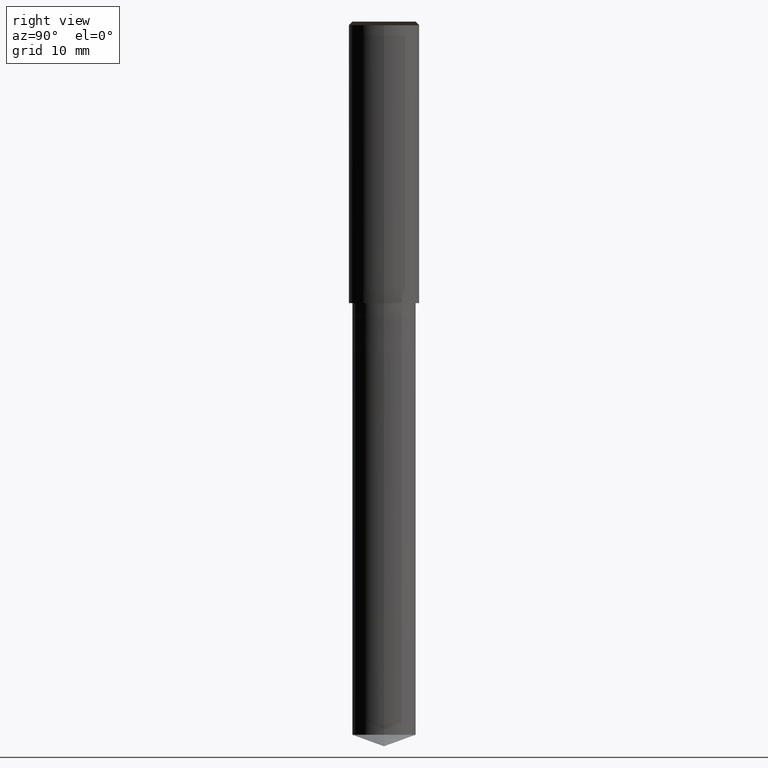
[diagram: clean part render]
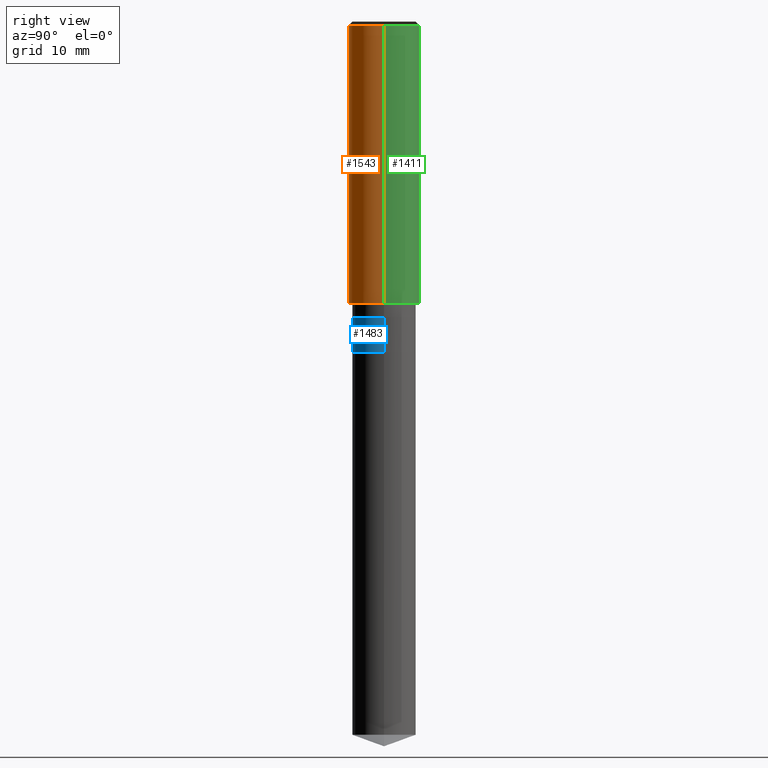
[diagram: same view with three faces highlighted in distinct colors, each labeled with its STEP entity id]
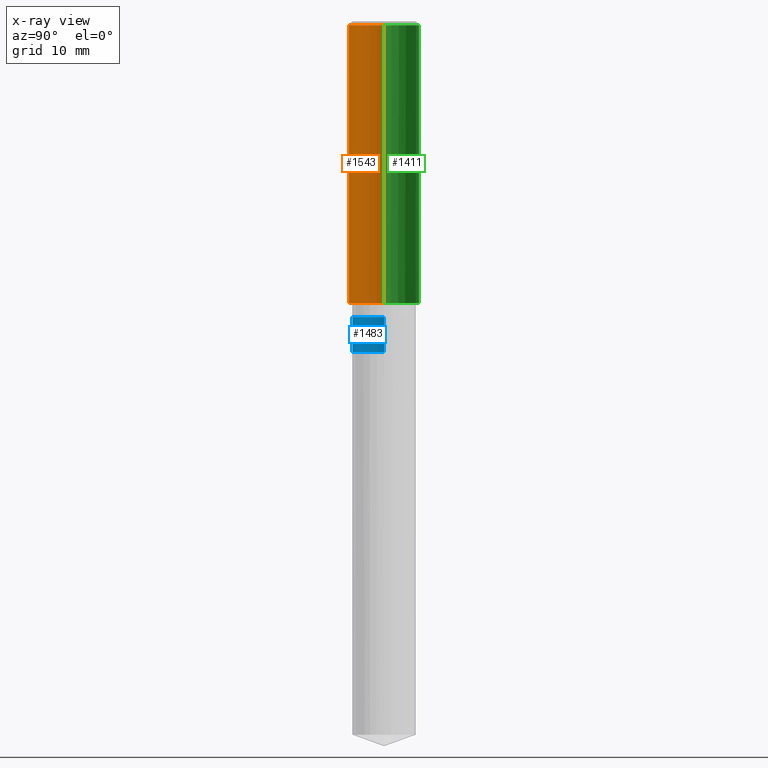
[diagram: x-ray of the same camera — body ghosted, the three highlighted faces saturated]
A machine part, right view with three faces highlighted in distinct colors.
The next image is the same camera in x-ray (body ghosted, the three faces saturated) — at least one of them is partly hidden behind the body in this view.
Their STEP definitions:

[orange] entity #1543 — the highlighted face is a freeform B-spline surface patch.
#1172=CARTESIAN_POINT('',(5.0,0.0,0.0));
#1176=CARTESIAN_POINT('',(-5.0,0.0,0.0));
#1177=CARTESIAN_POINT('',(5.0,0.0,39.5));
#1181=CARTESIAN_POINT('',(-5.0,0.0,39.5));
#1194=CARTESIAN_POINT('',(-5.0,-5.0,0.0));
#1195=CARTESIAN_POINT('',(0.0,-5.0,0.0));
#1196=CARTESIAN_POINT('',(5.0,-5.0,0.0));
#1197=CARTESIAN_POINT('',(-5.0,-5.0,39.5));
#1198=CARTESIAN_POINT('',(0.0,-5.0,39.5));
#1199=CARTESIAN_POINT('',(5.0,-5.0,39.5));
#1524=(
BOUNDED_SURFACE()
B_SPLINE_SURFACE(1,2,(
(#1176,#1194,#1195,#1196,#1172),
(#1181,#1197,#1198,#1199,#1177)
), .UNSPECIFIED.,.F.,.F.,.F.)
B_SPLINE_SURFACE_WITH_KNOTS((2,2),(3,2,3),(
0.0,1.0),(
0.0,0.5,1.0), .UNSPECIFIED.)
GEOMETRIC_REPRESENTATION_ITEM()
RATIONAL_B_SPLINE_SURFACE(((1.0,0.707106781187,1.0,0.707106781187,1.0),
(1.0,0.707106781187,1.0,0.707106781187,1.0)
))
REPRESENTATION_ITEM('')
SURFACE()
);
#1525=(
BOUNDED_CURVE()
B_SPLINE_CURVE(2,(#1172,#1196,#1195,#1194,#1176),.UNSPECIFIED.,.F.,.F.)
B_SPLINE_CURVE_WITH_KNOTS((3,2,3),
(0.0,0.5,1.0),.UNSPECIFIED.)
CURVE()
GEOMETRIC_REPRESENTATION_ITEM()
RATIONAL_B_SPLINE_CURVE((1.0,0.707106781187,1.0,0.707106781187,1.0))
REPRESENTATION_ITEM('')
);
#1526=(
BOUNDED_CURVE()
B_SPLINE_CURVE(1,(#1176,#1181),.UNSPECIFIED.,.F.,.F.)
B_SPLINE_CURVE_WITH_KNOTS((2,2),
(0.0,1.0),.UNSPECIFIED.)
CURVE()
GEOMETRIC_REPRESENTATION_ITEM()
RATIONAL_B_SPLINE_CURVE((1.0,1.0))
REPRESENTATION_ITEM('')
);
#1527=(
BOUNDED_CURVE()
B_SPLINE_CURVE(2,(#1181,#1197,#1198,#1199,#1177),.UNSPECIFIED.,.F.,.F.)
B_SPLINE_CURVE_WITH_KNOTS((3,2,3),
(0.0,0.5,1.0),.UNSPECIFIED.)
CURVE()
GEOMETRIC_REPRESENTATION_ITEM()
RATIONAL_B_SPLINE_CURVE((1.0,0.707106781187,1.0,0.707106781187,1.0))
REPRESENTATION_ITEM('')
);
#1528=(
BOUNDED_CURVE()
B_SPLINE_CURVE(1,(#1177,#1172),.UNSPECIFIED.,.F.,.F.)
B_SPLINE_CURVE_WITH_KNOTS((2,2),
(0.0,1.0),.UNSPECIFIED.)
CURVE()
GEOMETRIC_REPRESENTATION_ITEM()
RATIONAL_B_SPLINE_CURVE((1.0,1.0))
REPRESENTATION_ITEM('')
);
#1529=VERTEX_POINT('',#1172);
#1530=VERTEX_POINT('',#1176);
#1531=VERTEX_POINT('',#1177);
#1532=VERTEX_POINT('',#1181);
#1533=EDGE_CURVE('',#1529,#1530,#1525,.T.);
#1534=EDGE_CURVE('',#1530,#1532,#1526,.T.);
#1535=EDGE_CURVE('',#1532,#1531,#1527,.T.);
#1536=EDGE_CURVE('',#1531,#1529,#1528,.T.);
#1537=ORIENTED_EDGE('',*,*,#1533,.T.);
#1538=ORIENTED_EDGE('',*,*,#1534,.T.);
#1539=ORIENTED_EDGE('',*,*,#1535,.T.);
#1540=ORIENTED_EDGE('',*,*,#1536,.T.);
#1541=EDGE_LOOP('',(#1537,#1538,#1539,#1540));
#1542=FACE_OUTER_BOUND('',#1541,.T.);
#1543=ADVANCED_FACE('',(#1542),#1524,.T.);

[blue] entity #1483 — the highlighted face is a freeform B-spline surface patch.
#1150=CARTESIAN_POINT('',(4.5,0.0,-7.0));
#1154=CARTESIAN_POINT('',(-4.5,0.0,-7.0));
#1159=CARTESIAN_POINT('',(-4.5,-4.5,-7.0));
#1160=CARTESIAN_POINT('',(0.0,-4.5,-7.0));
#1161=CARTESIAN_POINT('',(4.5,-4.5,-7.0));
#1162=CARTESIAN_POINT('',(4.5,0.0,-2.0));
#1166=CARTESIAN_POINT('',(-4.5,0.0,-2.0));
#1188=CARTESIAN_POINT('',(-4.5,-4.5,-2.0));
#1189=CARTESIAN_POINT('',(0.0,-4.5,-2.0));
#1190=CARTESIAN_POINT('',(4.5,-4.5,-2.0));
#1464=(
BOUNDED_SURFACE()
B_SPLINE_SURFACE(1,2,(
(#1154,#1159,#1160,#1161,#1150),
(#1166,#1188,#1189,#1190,#1162)
), .UNSPECIFIED.,.F.,.F.,.F.)
B_SPLINE_SURFACE_WITH_KNOTS((2,2),(3,2,3),(
0.0,1.0),(
0.0,0.5,1.0), .UNSPECIFIED.)
GEOMETRIC_REPRESENTATION_ITEM()
RATIONAL_B_SPLINE_SURFACE(((1.0,0.707106781187,1.0,0.707106781187,1.0),
(1.0,0.707106781187,1.0,0.707106781187,1.0)
))
REPRESENTATION_ITEM('')
SURFACE()
);
#1465=(
BOUNDED_CURVE()
B_SPLINE_CURVE(2,(#1150,#1161,#1160,#1159,#1154),.UNSPECIFIED.,.F.,.F.)
B_SPLINE_CURVE_WITH_KNOTS((3,2,3),
(0.0,0.5,1.0),.UNSPECIFIED.)
CURVE()
GEOMETRIC_REPRESENTATION_ITEM()
RATIONAL_B_SPLINE_CURVE((1.0,0.707106781187,1.0,0.707106781187,1.0))
REPRESENTATION_ITEM('')
);
#1466=(
BOUNDED_CURVE()
B_SPLINE_CURVE(1,(#1154,#1166),.UNSPECIFIED.,.F.,.F.)
B_SPLINE_CURVE_WITH_KNOTS((2,2),
(0.0,1.0),.UNSPECIFIED.)
CURVE()
GEOMETRIC_REPRESENTATION_ITEM()
RATIONAL_B_SPLINE_CURVE((1.0,1.0))
REPRESENTATION_ITEM('')
);
#1467=(
BOUNDED_CURVE()
B_SPLINE_CURVE(2,(#1166,#1188,#1189,#1190,#1162),.UNSPECIFIED.,.F.,.F.)
B_SPLINE_CURVE_WITH_KNOTS((3,2,3),
(0.0,0.5,1.0),.UNSPECIFIED.)
CURVE()
GEOMETRIC_REPRESENTATION_ITEM()
RATIONAL_B_SPLINE_CURVE((1.0,0.707106781187,1.0,0.707106781187,1.0))
REPRESENTATION_ITEM('')
);
#1468=(
BOUNDED_CURVE()
B_SPLINE_CURVE(1,(#1162,#1150),.UNSPECIFIED.,.F.,.F.)
B_SPLINE_CURVE_WITH_KNOTS((2,2),
(0.0,1.0),.UNSPECIFIED.)
CURVE()
GEOMETRIC_REPRESENTATION_ITEM()
RATIONAL_B_SPLINE_CURVE((1.0,1.0))
REPRESENTATION_ITEM('')
);
#1469=VERTEX_POINT('',#1150);
#1470=VERTEX_POINT('',#1154);
#1471=VERTEX_POINT('',#1162);
#1472=VERTEX_POINT('',#1166);
#1473=EDGE_CURVE('',#1469,#1470,#1465,.T.);
#1474=EDGE_CURVE('',#1470,#1472,#1466,.T.);
#1475=EDGE_CURVE('',#1472,#1471,#1467,.T.);
#1476=EDGE_CURVE('',#1471,#1469,#1468,.T.);
#1477=ORIENTED_EDGE('',*,*,#1473,.T.);
#1478=ORIENTED_EDGE('',*,*,#1474,.T.);
#1479=ORIENTED_EDGE('',*,*,#1475,.T.);
#1480=ORIENTED_EDGE('',*,*,#1476,.T.);
#1481=EDGE_LOOP('',(#1477,#1478,#1479,#1480));
#1482=FACE_OUTER_BOUND('',#1481,.T.);
#1483=ADVANCED_FACE('',(#1482),#1464,.T.);

[green] entity #1411 — the highlighted face is a freeform B-spline surface patch.
#1172=CARTESIAN_POINT('',(5.0,0.0,0.0));
#1173=CARTESIAN_POINT('',(5.0,5.0,0.0));
#1174=CARTESIAN_POINT('',(0.0,5.0,0.0));
#1175=CARTESIAN_POINT('',(-5.0,5.0,0.0));
#1176=CARTESIAN_POINT('',(-5.0,0.0,0.0));
#1177=CARTESIAN_POINT('',(5.0,0.0,39.5));
#1178=CARTESIAN_POINT('',(5.0,5.0,39.5));
#1179=CARTESIAN_POINT('',(0.0,5.0,39.5));
#1180=CARTESIAN_POINT('',(-5.0,5.0,39.5));
#1181=CARTESIAN_POINT('',(-5.0,0.0,39.5));
#1392=(
BOUNDED_SURFACE()
B_SPLINE_SURFACE(1,2,(
(#1172,#1173,#1174,#1175,#1176),
(#1177,#1178,#1179,#1180,#1181)
), .UNSPECIFIED.,.F.,.F.,.F.)
B_SPLINE_SURFACE_WITH_KNOTS((2,2),(3,2,3),(
0.0,1.0),(
0.0,0.5,1.0), .UNSPECIFIED.)
GEOMETRIC_REPRESENTATION_ITEM()
RATIONAL_B_SPLINE_SURFACE(((1.0,0.707106781187,1.0,0.707106781187,1.0),
(1.0,0.707106781187,1.0,0.707106781187,1.0)
))
REPRESENTATION_ITEM('')
SURFACE()
);
#1393=(
BOUNDED_CURVE()
B_SPLINE_CURVE(2,(#1176,#1175,#1174,#1173,#1172),.UNSPECIFIED.,.F.,.F.)
B_SPLINE_CURVE_WITH_KNOTS((3,2,3),
(0.0,0.5,1.0),.UNSPECIFIED.)
CURVE()
GEOMETRIC_REPRESENTATION_ITEM()
RATIONAL_B_SPLINE_CURVE((1.0,0.707106781187,1.0,0.707106781187,1.0))
REPRESENTATION_ITEM('')
);
#1394=(
BOUNDED_CURVE()
B_SPLINE_CURVE(1,(#1172,#1177),.UNSPECIFIED.,.F.,.F.)
B_SPLINE_CURVE_WITH_KNOTS((2,2),
(0.0,1.0),.UNSPECIFIED.)
CURVE()
GEOMETRIC_REPRESENTATION_ITEM()
RATIONAL_B_SPLINE_CURVE((1.0,1.0))
REPRESENTATION_ITEM('')
);
#1395=(
BOUNDED_CURVE()
B_SPLINE_CURVE(2,(#1177,#1178,#1179,#1180,#1181),.UNSPECIFIED.,.F.,.F.)
B_SPLINE_CURVE_WITH_KNOTS((3,2,3),
(0.0,0.5,1.0),.UNSPECIFIED.)
CURVE()
GEOMETRIC_REPRESENTATION_ITEM()
RATIONAL_B_SPLINE_CURVE((1.0,0.707106781187,1.0,0.707106781187,1.0))
REPRESENTATION_ITEM('')
);
#1396=(
BOUNDED_CURVE()
B_SPLINE_CURVE(1,(#1181,#1176),.UNSPECIFIED.,.F.,.F.)
B_SPLINE_CURVE_WITH_KNOTS((2,2),
(0.0,1.0),.UNSPECIFIED.)
CURVE()
GEOMETRIC_REPRESENTATION_ITEM()
RATIONAL_B_SPLINE_CURVE((1.0,1.0))
REPRESENTATION_ITEM('')
);
#1397=VERTEX_POINT('',#1172);
#1398=VERTEX_POINT('',#1176);
#1399=VERTEX_POINT('',#1177);
#1400=VERTEX_POINT('',#1181);
#1401=EDGE_CURVE('',#1398,#1397,#1393,.T.);
#1402=EDGE_CURVE('',#1397,#1399,#1394,.T.);
#1403=EDGE_CURVE('',#1399,#1400,#1395,.T.);
#1404=EDGE_CURVE('',#1400,#1398,#1396,.T.);
#1405=ORIENTED_EDGE('',*,*,#1401,.T.);
#1406=ORIENTED_EDGE('',*,*,#1402,.T.);
#1407=ORIENTED_EDGE('',*,*,#1403,.T.);
#1408=ORIENTED_EDGE('',*,*,#1404,.T.);
#1409=EDGE_LOOP('',(#1405,#1406,#1407,#1408));
#1410=FACE_OUTER_BOUND('',#1409,.T.);
#1411=ADVANCED_FACE('',(#1410),#1392,.T.);